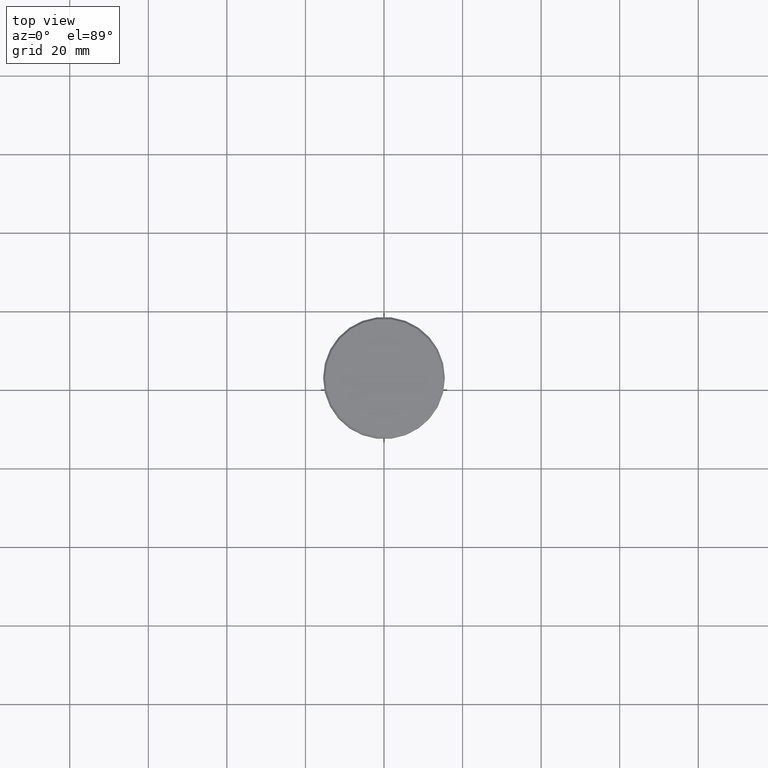
[diagram: clean part render]
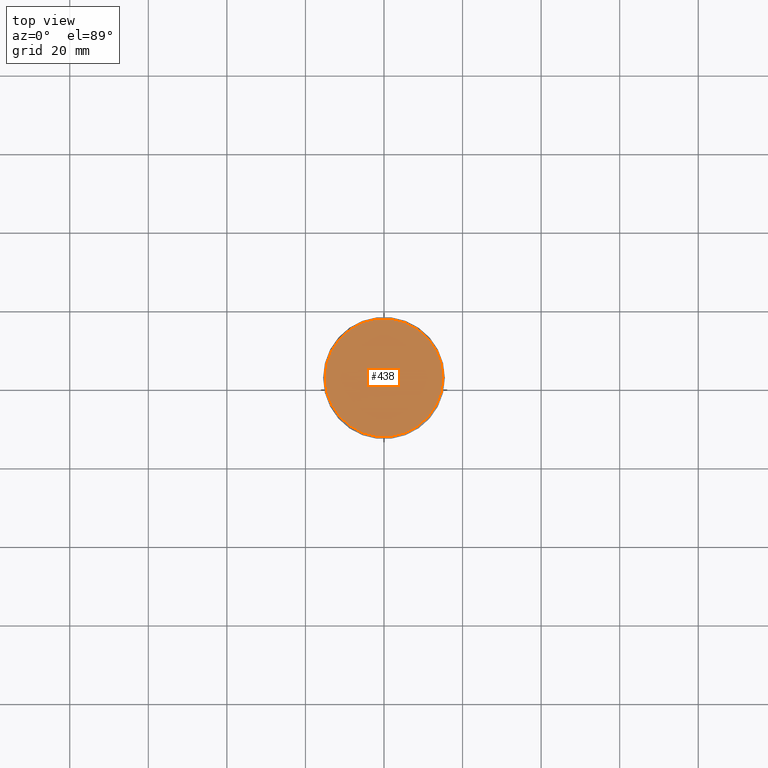
[diagram: same view with one face highlighted and labeled with its STEP entity id]
A machine part, top view. The second image highlights one B-rep face of the part: STEP entity #438.
In plain terms, the highlighted planar face has unit normal (0, -0, 1).
Its self-contained STEP definition (entity closure, byte-faithful):
#1 = VERTEX_POINT ( 'NONE', #575 ) ;
#109 = AXIS2_PLACEMENT_3D ( 'NONE', #796, #884, #248 ) ;
#156 = PLANE ( 'NONE',  #109 ) ;
#248 = DIRECTION ( 'NONE',  ( 1.000000000000000000, 0.000000000000000000, 0.000000000000000000 ) ) ;
#286 = DIRECTION ( 'NONE',  ( 1.000000000000000000, 0.000000000000000000, 0.000000000000000000 ) ) ;
#313 = CIRCLE ( 'NONE', #425, 14.99999999999995737 ) ;
#315 = EDGE_CURVE ( 'NONE', #580, #1, #313, .T. ) ;
#321 = CARTESIAN_POINT ( 'NONE',  ( 14.99999999999995737, 1.867586368699711009E-15, 0.000000000000000000 ) ) ;
#328 = EDGE_LOOP ( 'NONE', ( #808, #762 ) ) ;
#425 = AXIS2_PLACEMENT_3D ( 'NONE', #810, #631, #445 ) ;
#438 = ADVANCED_FACE ( 'NONE', ( #805 ), #156, .T. ) ;
#445 = DIRECTION ( 'NONE',  ( 1.000000000000000000, 0.000000000000000000, 0.000000000000000000 ) ) ;
#497 = CIRCLE ( 'NONE', #1071, 14.99999999999995737 ) ;
#575 = CARTESIAN_POINT ( 'NONE',  ( -14.99999999999995737, 0.000000000000000000, 0.000000000000000000 ) ) ;
#580 = VERTEX_POINT ( 'NONE', #321 ) ;
#631 = DIRECTION ( 'NONE',  ( -0.000000000000000000, -0.000000000000000000, 1.000000000000000000 ) ) ;
#762 = ORIENTED_EDGE ( 'NONE', *, *, #315, .T. ) ;
#796 = CARTESIAN_POINT ( 'NONE',  ( 0.000000000000000000, 0.000000000000000000, 0.000000000000000000 ) ) ;
#805 = FACE_OUTER_BOUND ( 'NONE', #328, .T. ) ;
#808 = ORIENTED_EDGE ( 'NONE', *, *, #858, .T. ) ;
#810 = CARTESIAN_POINT ( 'NONE',  ( 0.000000000000000000, 0.000000000000000000, 0.000000000000000000 ) ) ;
#858 = EDGE_CURVE ( 'NONE', #1, #580, #497, .T. ) ;
#884 = DIRECTION ( 'NONE',  ( 0.000000000000000000, -0.000000000000000000, 1.000000000000000000 ) ) ;
#932 = DIRECTION ( 'NONE',  ( -0.000000000000000000, -0.000000000000000000, 1.000000000000000000 ) ) ;
#1020 = CARTESIAN_POINT ( 'NONE',  ( 0.000000000000000000, 0.000000000000000000, 0.000000000000000000 ) ) ;
#1071 = AXIS2_PLACEMENT_3D ( 'NONE', #1020, #932, #286 ) ;